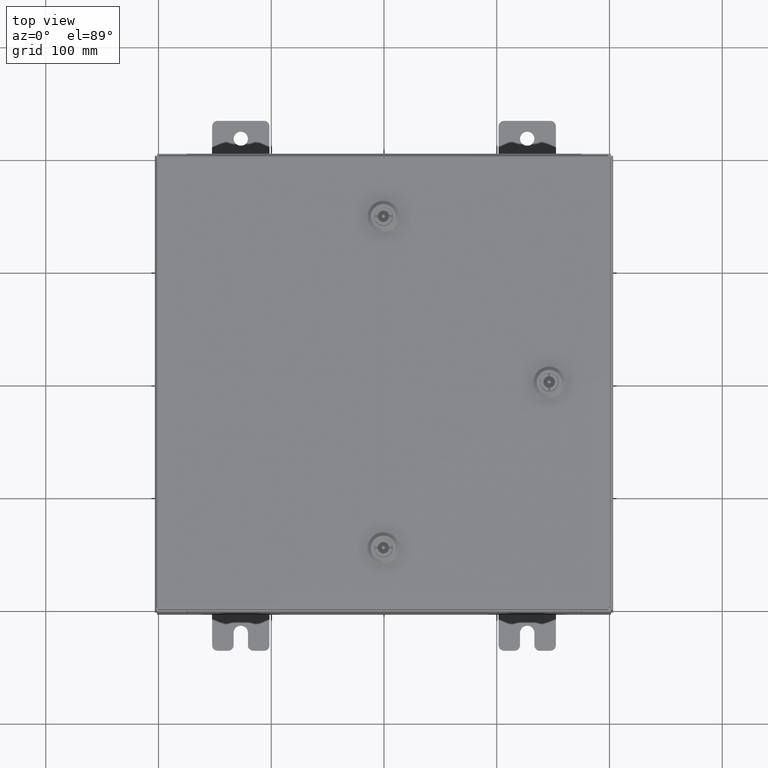
[diagram: clean part render]
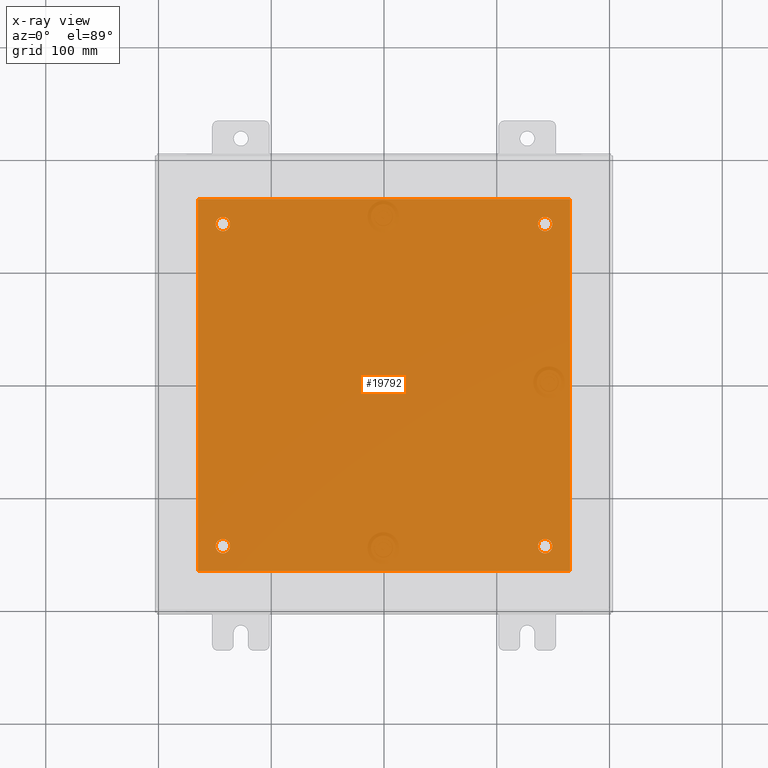
[diagram: x-ray — body ghosted, one internal face saturated and labeled with its STEP entity id]
A machine part, top view, then the same camera in x-ray: the body is ghosted and one INTERNAL B-rep face — a face not visible from any outside direction — is saturated and labeled: STEP entity #19792.
In plain terms, the highlighted planar face has unit normal (0, 0, -1).
Its self-contained STEP definition (entity closure, byte-faithful):
#118 = CARTESIAN_POINT ( 'NONE',  ( -6.500000000000000000, 6.500000000000000900, -0.1039999999999999800 ) ) ;
#381 = CIRCLE ( 'NONE', #24629, 0.2499999999999987000 ) ;
#2188 = LINE ( 'NONE', #118, #27522 ) ;
#2208 = CARTESIAN_POINT ( 'NONE',  ( 0.0000000000000000000, 0.0000000000000000000, -0.1039999999999999800 ) ) ;
#2447 = EDGE_CURVE ( 'NONE', #56812, #49916, #44610, .T. ) ;
#3305 = VECTOR ( 'NONE', #3636, 39.37007874015748100 ) ;
#3636 = DIRECTION ( 'NONE',  ( -0.0000000000000000000, -1.000000000000000000, -0.0000000000000000000 ) ) ;
#3701 = CARTESIAN_POINT ( 'NONE',  ( -6.500000000000000000, -6.499999999999999100, -0.1039999999999999800 ) ) ;
#6796 = EDGE_LOOP ( 'NONE', ( #55409, #8663 ) ) ;
#7115 = AXIS2_PLACEMENT_3D ( 'NONE', #54519, #25954, #59335 ) ;
#8107 = FACE_OUTER_BOUND ( 'NONE', #27039, .T. ) ;
#8490 = DIRECTION ( 'NONE',  ( 1.000000000000000000, 0.0000000000000000000, 0.0000000000000000000 ) ) ;
#8663 = ORIENTED_EDGE ( 'NONE', *, *, #17029, .T. ) ;
#10226 = CARTESIAN_POINT ( 'NONE',  ( -5.625000000000002700, -5.625000000000000900, -0.1039999999999999800 ) ) ;
#10877 = AXIS2_PLACEMENT_3D ( 'NONE', #10226, #43571, #15026 ) ;
#10936 = ORIENTED_EDGE ( 'NONE', *, *, #56935, .F. ) ;
#10980 = VERTEX_POINT ( 'NONE', #53746 ) ;
#11585 = DIRECTION ( 'NONE',  ( 0.0000000000000000000, 1.000000000000000000, 0.0000000000000000000 ) ) ;
#11980 = CARTESIAN_POINT ( 'NONE',  ( 5.875000000000000900, -5.625000000000000900, -0.1039999999999999800 ) ) ;
#12060 = CARTESIAN_POINT ( 'NONE',  ( -6.500000000000000000, 6.500000000000000900, -0.1039999999999999800 ) ) ;
#13295 = CARTESIAN_POINT ( 'NONE',  ( -5.625000000000002700, 5.625000000000000900, -0.1039999999999999800 ) ) ;
#13713 = AXIS2_PLACEMENT_3D ( 'NONE', #15007, #48351, #19817 ) ;
#13777 = EDGE_CURVE ( 'NONE', #32788, #33216, #47033, .T. ) ;
#15007 = CARTESIAN_POINT ( 'NONE',  ( 5.625000000000002700, -5.625000000000000900, -0.1039999999999999800 ) ) ;
#15026 = DIRECTION ( 'NONE',  ( -1.000000000000000000, 0.0000000000000000000, 0.0000000000000000000 ) ) ;
#16300 = CIRCLE ( 'NONE', #41942, 0.2499999999999987000 ) ;
#16737 = VECTOR ( 'NONE', #8490, 39.37007874015748100 ) ;
#16769 = DIRECTION ( 'NONE',  ( 0.0000000000000000000, 0.0000000000000000000, -1.000000000000000000 ) ) ;
#17029 = EDGE_CURVE ( 'NONE', #24103, #60309, #44800, .T. ) ;
#18126 = DIRECTION ( 'NONE',  ( -1.000000000000000000, 0.0000000000000000000, 0.0000000000000000000 ) ) ;
#18258 = ORIENTED_EDGE ( 'NONE', *, *, #2447, .F. ) ;
#19033 = EDGE_CURVE ( 'NONE', #49916, #32287, #2188, .T. ) ;
#19792 = ADVANCED_FACE ( 'NONE', ( #33408, #58822, #47613, #20768, #8107 ), #45316, .T. ) ;
#19817 = DIRECTION ( 'NONE',  ( -1.000000000000000000, 0.0000000000000000000, 0.0000000000000000000 ) ) ;
#19992 = EDGE_LOOP ( 'NONE', ( #61081, #35553 ) ) ;
#20768 = FACE_BOUND ( 'NONE', #45544, .T. ) ;
#20942 = CIRCLE ( 'NONE', #7115, 0.2499999999999998100 ) ;
#21326 = CARTESIAN_POINT ( 'NONE',  ( -5.625000000000002700, 5.625000000000000900, -0.1039999999999999800 ) ) ;
#21866 = CARTESIAN_POINT ( 'NONE',  ( 6.500000000000000000, 6.500000000000000900, -0.1039999999999999800 ) ) ;
#22376 = CARTESIAN_POINT ( 'NONE',  ( -5.375000000000002700, -5.625000000000000900, -0.1039999999999999800 ) ) ;
#22614 = CARTESIAN_POINT ( 'NONE',  ( -6.500000000000000000, -6.499999999999999100, -0.1039999999999999800 ) ) ;
#22728 = DIRECTION ( 'NONE',  ( -0.0000000000000000000, -0.0000000000000000000, 1.000000000000000000 ) ) ;
#24103 = VERTEX_POINT ( 'NONE', #43995 ) ;
#24426 = VERTEX_POINT ( 'NONE', #50798 ) ;
#24626 = DIRECTION ( 'NONE',  ( -0.0000000000000000000, -0.0000000000000000000, 1.000000000000000000 ) ) ;
#24629 = AXIS2_PLACEMENT_3D ( 'NONE', #25915, #59300, #30703 ) ;
#25915 = CARTESIAN_POINT ( 'NONE',  ( 5.625000000000002700, 5.625000000000000900, -0.1039999999999999800 ) ) ;
#25954 = DIRECTION ( 'NONE',  ( -0.0000000000000000000, -0.0000000000000000000, 1.000000000000000000 ) ) ;
#26117 = DIRECTION ( 'NONE',  ( -1.000000000000000000, 0.0000000000000000000, 0.0000000000000000000 ) ) ;
#27039 = EDGE_LOOP ( 'NONE', ( #18258, #10936, #61731, #47747 ) ) ;
#27522 = VECTOR ( 'NONE', #33404, 39.37007874015748100 ) ;
#30703 = DIRECTION ( 'NONE',  ( -1.000000000000000000, 0.0000000000000000000, 0.0000000000000000000 ) ) ;
#31497 = EDGE_CURVE ( 'NONE', #32287, #10980, #41274, .T. ) ;
#32061 = CARTESIAN_POINT ( 'NONE',  ( 5.375000000000003600, 5.625000000000000900, -0.1039999999999999800 ) ) ;
#32287 = VERTEX_POINT ( 'NONE', #12060 ) ;
#32786 = EDGE_CURVE ( 'NONE', #35645, #47473, #56180, .T. ) ;
#32788 = VERTEX_POINT ( 'NONE', #52970 ) ;
#33216 = VERTEX_POINT ( 'NONE', #60910 ) ;
#33404 = DIRECTION ( 'NONE',  ( -1.000000000000000000, -0.0000000000000000000, -0.0000000000000000000 ) ) ;
#33408 = FACE_BOUND ( 'NONE', #19992, .T. ) ;
#33979 = EDGE_CURVE ( 'NONE', #60309, #24103, #38870, .T. ) ;
#34648 = ORIENTED_EDGE ( 'NONE', *, *, #58213, .T. ) ;
#35553 = ORIENTED_EDGE ( 'NONE', *, *, #32786, .T. ) ;
#35645 = VERTEX_POINT ( 'NONE', #50566 ) ;
#38870 = CIRCLE ( 'NONE', #13713, 0.2499999999999987000 ) ;
#40110 = CARTESIAN_POINT ( 'NONE',  ( 6.500000000000000000, -6.499999999999999100, -0.1039999999999999800 ) ) ;
#40974 = CARTESIAN_POINT ( 'NONE',  ( 6.500000000000000000, -6.499999999999999100, -0.1039999999999999800 ) ) ;
#41274 = LINE ( 'NONE', #22614, #3305 ) ;
#41753 = ORIENTED_EDGE ( 'NONE', *, *, #49298, .T. ) ;
#41942 = AXIS2_PLACEMENT_3D ( 'NONE', #51253, #22728, #56090 ) ;
#41965 = ORIENTED_EDGE ( 'NONE', *, *, #13777, .T. ) ;
#42057 = LINE ( 'NONE', #3701, #16737 ) ;
#43571 = DIRECTION ( 'NONE',  ( -0.0000000000000000000, -0.0000000000000000000, 1.000000000000000000 ) ) ;
#43995 = CARTESIAN_POINT ( 'NONE',  ( 5.375000000000003600, -5.625000000000000900, -0.1039999999999999800 ) ) ;
#44610 = LINE ( 'NONE', #40110, #57331 ) ;
#44800 = CIRCLE ( 'NONE', #46096, 0.2499999999999987000 ) ;
#45316 = PLANE ( 'NONE',  #47034 ) ;
#45544 = EDGE_LOOP ( 'NONE', ( #41753, #41965 ) ) ;
#46096 = AXIS2_PLACEMENT_3D ( 'NONE', #53194, #24626, #57983 ) ;
#46641 = DIRECTION ( 'NONE',  ( -0.0000000000000000000, -0.0000000000000000000, 1.000000000000000000 ) ) ;
#47033 = CIRCLE ( 'NONE', #56831, 0.2499999999999998100 ) ;
#47034 = AXIS2_PLACEMENT_3D ( 'NONE', #2208, #16769, #50109 ) ;
#47473 = VERTEX_POINT ( 'NONE', #22376 ) ;
#47613 = FACE_BOUND ( 'NONE', #54852, .T. ) ;
#47747 = ORIENTED_EDGE ( 'NONE', *, *, #19033, .F. ) ;
#48351 = DIRECTION ( 'NONE',  ( -0.0000000000000000000, -0.0000000000000000000, 1.000000000000000000 ) ) ;
#49298 = EDGE_CURVE ( 'NONE', #33216, #32788, #57490, .T. ) ;
#49916 = VERTEX_POINT ( 'NONE', #21866 ) ;
#50109 = DIRECTION ( 'NONE',  ( -1.000000000000000000, 0.0000000000000000000, -0.0000000000000000000 ) ) ;
#50566 = CARTESIAN_POINT ( 'NONE',  ( -5.875000000000001800, -5.625000000000000900, -0.1039999999999999800 ) ) ;
#50798 = CARTESIAN_POINT ( 'NONE',  ( 5.875000000000000900, 5.625000000000000900, -0.1039999999999999800 ) ) ;
#51091 = AXIS2_PLACEMENT_3D ( 'NONE', #21326, #54690, #26117 ) ;
#51253 = CARTESIAN_POINT ( 'NONE',  ( 5.625000000000002700, 5.625000000000000900, -0.1039999999999999800 ) ) ;
#51275 = EDGE_CURVE ( 'NONE', #24426, #52589, #16300, .T. ) ;
#52589 = VERTEX_POINT ( 'NONE', #32061 ) ;
#52970 = CARTESIAN_POINT ( 'NONE',  ( -5.875000000000001800, 5.625000000000000900, -0.1039999999999999800 ) ) ;
#53194 = CARTESIAN_POINT ( 'NONE',  ( 5.625000000000002700, -5.625000000000000900, -0.1039999999999999800 ) ) ;
#53746 = CARTESIAN_POINT ( 'NONE',  ( -6.500000000000000000, -6.499999999999999100, -0.1039999999999999800 ) ) ;
#54519 = CARTESIAN_POINT ( 'NONE',  ( -5.625000000000002700, -5.625000000000000900, -0.1039999999999999800 ) ) ;
#54690 = DIRECTION ( 'NONE',  ( -0.0000000000000000000, -0.0000000000000000000, 1.000000000000000000 ) ) ;
#54852 = EDGE_LOOP ( 'NONE', ( #61406, #34648 ) ) ;
#55409 = ORIENTED_EDGE ( 'NONE', *, *, #33979, .T. ) ;
#56090 = DIRECTION ( 'NONE',  ( -1.000000000000000000, 0.0000000000000000000, 0.0000000000000000000 ) ) ;
#56180 = CIRCLE ( 'NONE', #10877, 0.2499999999999998100 ) ;
#56812 = VERTEX_POINT ( 'NONE', #40974 ) ;
#56831 = AXIS2_PLACEMENT_3D ( 'NONE', #13295, #46641, #18126 ) ;
#56935 = EDGE_CURVE ( 'NONE', #10980, #56812, #42057, .T. ) ;
#57331 = VECTOR ( 'NONE', #11585, 39.37007874015748100 ) ;
#57490 = CIRCLE ( 'NONE', #51091, 0.2499999999999998100 ) ;
#57983 = DIRECTION ( 'NONE',  ( -1.000000000000000000, 0.0000000000000000000, 0.0000000000000000000 ) ) ;
#58213 = EDGE_CURVE ( 'NONE', #52589, #24426, #381, .T. ) ;
#58822 = FACE_BOUND ( 'NONE', #6796, .T. ) ;
#59300 = DIRECTION ( 'NONE',  ( -0.0000000000000000000, -0.0000000000000000000, 1.000000000000000000 ) ) ;
#59335 = DIRECTION ( 'NONE',  ( -1.000000000000000000, 0.0000000000000000000, 0.0000000000000000000 ) ) ;
#59536 = EDGE_CURVE ( 'NONE', #47473, #35645, #20942, .T. ) ;
#60309 = VERTEX_POINT ( 'NONE', #11980 ) ;
#60910 = CARTESIAN_POINT ( 'NONE',  ( -5.375000000000002700, 5.625000000000000900, -0.1039999999999999800 ) ) ;
#61081 = ORIENTED_EDGE ( 'NONE', *, *, #59536, .T. ) ;
#61406 = ORIENTED_EDGE ( 'NONE', *, *, #51275, .T. ) ;
#61731 = ORIENTED_EDGE ( 'NONE', *, *, #31497, .F. ) ;